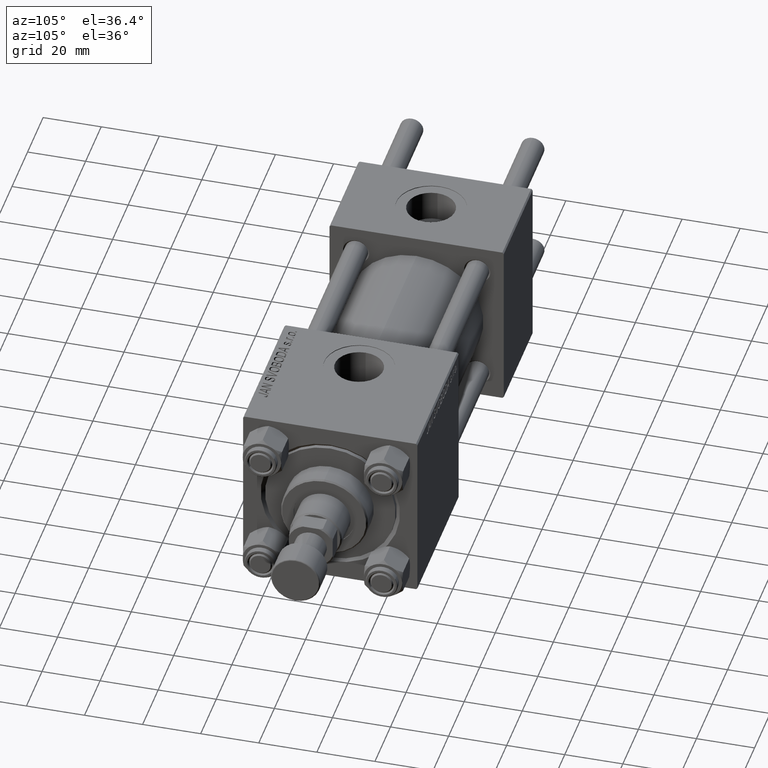
[diagram: clean part render]
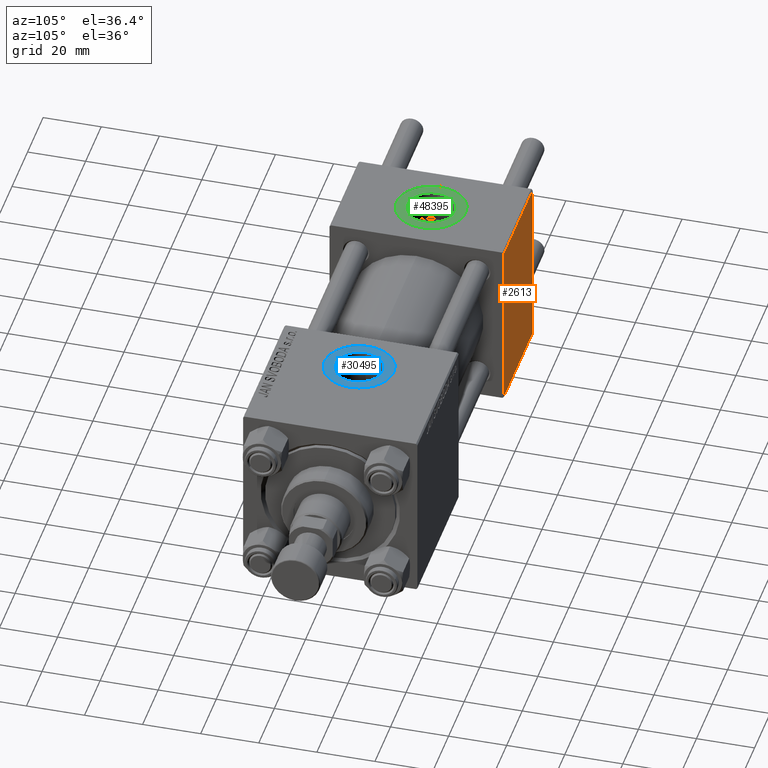
[diagram: same view with three faces highlighted in distinct colors, each labeled with its STEP entity id]
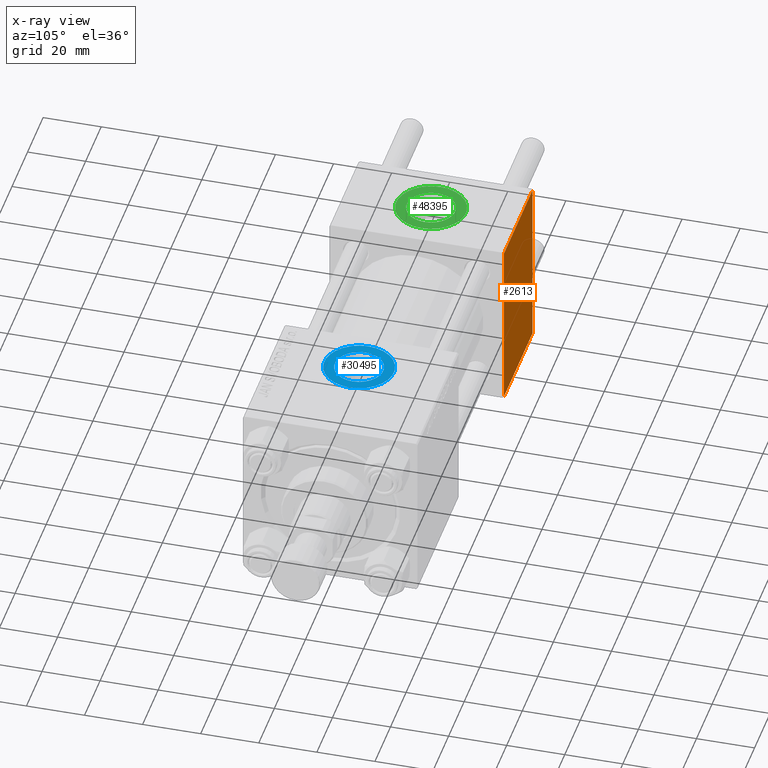
[diagram: x-ray of the same camera — body ghosted, the three highlighted faces saturated]
A machine part, auxiliary view with three faces highlighted in distinct colors.
The next image is the same camera in x-ray (body ghosted, the three faces saturated) — at least one of them is partly hidden behind the body in this view.
Their STEP definitions:

[orange] entity #2613 — the highlighted planar face has unit normal (0, 1, 0).
#2613 = ADVANCED_FACE ( 'NONE', ( #20849 ), #5098, .T. ) ;
#2879 = CARTESIAN_POINT ( 'NONE',  ( 37.00000000000000000, 29.99999999999999289, -29.50000000000000000 ) ) ;
#3991 = EDGE_CURVE ( 'NONE', #32459, #26860, #38573, .T. ) ;
#4728 = EDGE_CURVE ( 'NONE', #50171, #26860, #44329, .T. ) ;
#5098 = PLANE ( 'NONE',  #32995 ) ;
#5157 = CARTESIAN_POINT ( 'NONE',  ( 37.00000000000000000, 29.99999999999999289, -29.50000000000000000 ) ) ;
#7176 = DIRECTION ( 'NONE',  ( -1.000000000000000000, 0.000000000000000000, 0.000000000000000000 ) ) ;
#7856 = VECTOR ( 'NONE', #7176, 1000.000000000000000 ) ;
#9405 = DIRECTION ( 'NONE',  ( 0.000000000000000000, -0.000000000000000000, 1.000000000000000000 ) ) ;
#11126 = CARTESIAN_POINT ( 'NONE',  ( 0.000000000000000000, 29.99999999999999289, 30.00000000000000000 ) ) ;
#12667 = LINE ( 'NONE', #28182, #43331 ) ;
#14344 = CARTESIAN_POINT ( 'NONE',  ( 0.000000000000000000, 29.99999999999999289, -29.50000000000000000 ) ) ;
#17536 = ORIENTED_EDGE ( 'NONE', *, *, #3991, .F. ) ;
#20849 = FACE_OUTER_BOUND ( 'NONE', #33853, .T. ) ;
#21216 = ORIENTED_EDGE ( 'NONE', *, *, #34531, .T. ) ;
#24892 = ORIENTED_EDGE ( 'NONE', *, *, #28932, .T. ) ;
#25684 = VECTOR ( 'NONE', #37945, 1000.000000000000000 ) ;
#26388 = DIRECTION ( 'NONE',  ( 0.000000000000000000, 0.000000000000000000, -1.000000000000000000 ) ) ;
#26860 = VERTEX_POINT ( 'NONE', #14344 ) ;
#28182 = CARTESIAN_POINT ( 'NONE',  ( 37.00000000000000000, 29.99999999999999289, 30.00000000000000000 ) ) ;
#28932 = EDGE_CURVE ( 'NONE', #31294, #50171, #12667, .T. ) ;
#28952 = CARTESIAN_POINT ( 'NONE',  ( 37.00000000000000000, 29.99999999999999289, 29.50000000000000000 ) ) ;
#31294 = VERTEX_POINT ( 'NONE', #28952 ) ;
#31537 = CARTESIAN_POINT ( 'NONE',  ( 0.000000000000000000, 29.99999999999999289, 29.50000000000000000 ) ) ;
#32459 = VERTEX_POINT ( 'NONE', #31537 ) ;
#32562 = CARTESIAN_POINT ( 'NONE',  ( 37.00000000000000000, 29.99999999999999289, 30.00000000000000000 ) ) ;
#32995 = AXIS2_PLACEMENT_3D ( 'NONE', #32562, #36108, #9405 ) ;
#33853 = EDGE_LOOP ( 'NONE', ( #24892, #37162, #17536, #21216 ) ) ;
#34142 = LINE ( 'NONE', #42007, #25684 ) ;
#34531 = EDGE_CURVE ( 'NONE', #32459, #31294, #34142, .T. ) ;
#34666 = VECTOR ( 'NONE', #26388, 1000.000000000000000 ) ;
#36108 = DIRECTION ( 'NONE',  ( -0.000000000000000000, 1.000000000000000000, 0.000000000000000000 ) ) ;
#37162 = ORIENTED_EDGE ( 'NONE', *, *, #4728, .T. ) ;
#37945 = DIRECTION ( 'NONE',  ( 1.000000000000000000, 0.000000000000000000, 0.000000000000000000 ) ) ;
#38573 = LINE ( 'NONE', #11126, #34666 ) ;
#42007 = CARTESIAN_POINT ( 'NONE',  ( 37.00000000000000000, 29.99999999999999289, 29.50000000000000000 ) ) ;
#43331 = VECTOR ( 'NONE', #43702, 1000.000000000000000 ) ;
#43702 = DIRECTION ( 'NONE',  ( 0.000000000000000000, 0.000000000000000000, -1.000000000000000000 ) ) ;
#44329 = LINE ( 'NONE', #2879, #7856 ) ;
#50171 = VERTEX_POINT ( 'NONE', #5157 ) ;

[blue] entity #30495 — the highlighted planar face has unit normal (0, 0, 1).
#1060 = CARTESIAN_POINT ( 'NONE',  ( 119.3300000000000125, -2.449316168263869821E-15, 29.79999999999999716 ) ) ;
#1387 = ORIENTED_EDGE ( 'NONE', *, *, #31354, .T. ) ;
#2069 = VERTEX_POINT ( 'NONE', #29021 ) ;
#2604 = DIRECTION ( 'NONE',  ( -0.000000000000000000, -0.000000000000000000, -1.000000000000000000 ) ) ;
#3256 = DIRECTION ( 'NONE',  ( 1.000000000000000000, 0.000000000000000000, 0.000000000000000000 ) ) ;
#4036 = EDGE_CURVE ( 'NONE', #28586, #11021, #7034, .T. ) ;
#5441 = AXIS2_PLACEMENT_3D ( 'NONE', #25236, #2604, #37174 ) ;
#7034 = CIRCLE ( 'NONE', #35458, 11.99999999999999645 ) ;
#7952 = EDGE_LOOP ( 'NONE', ( #1387, #14329 ) ) ;
#9870 = FACE_OUTER_BOUND ( 'NONE', #7952, .T. ) ;
#10873 = CARTESIAN_POINT ( 'NONE',  ( 111.0000000000000000, -3.469446951953613794E-15, 29.79999999999999716 ) ) ;
#11021 = VERTEX_POINT ( 'NONE', #38157 ) ;
#11373 = DIRECTION ( 'NONE',  ( 0.000000000000000000, 0.000000000000000000, 1.000000000000000000 ) ) ;
#12724 = CARTESIAN_POINT ( 'NONE',  ( 99.00000000000000000, -1.999870792976792017E-15, 29.79999999999999716 ) ) ;
#14329 = ORIENTED_EDGE ( 'NONE', *, *, #4036, .T. ) ;
#15134 = ORIENTED_EDGE ( 'NONE', *, *, #41181, .T. ) ;
#15725 = DIRECTION ( 'NONE',  ( 1.000000000000000000, 0.000000000000000000, 0.000000000000000000 ) ) ;
#17402 = CIRCLE ( 'NONE', #45827, 11.99999999999999645 ) ;
#17616 = CIRCLE ( 'NONE', #5441, 8.330000000000003624 ) ;
#21461 = AXIS2_PLACEMENT_3D ( 'NONE', #25135, #48781, #40372 ) ;
#22325 = DIRECTION ( 'NONE',  ( 1.000000000000000000, 0.000000000000000000, 0.000000000000000000 ) ) ;
#23864 = CARTESIAN_POINT ( 'NONE',  ( 111.0000000000000000, -3.469446951953613794E-15, 29.79999999999999716 ) ) ;
#24470 = ORIENTED_EDGE ( 'NONE', *, *, #25629, .T. ) ;
#25135 = CARTESIAN_POINT ( 'NONE',  ( 111.0000000000000000, -3.469446951953613794E-15, 29.79999999999999716 ) ) ;
#25236 = CARTESIAN_POINT ( 'NONE',  ( 111.0000000000000000, -3.469446951953613794E-15, 29.79999999999999716 ) ) ;
#25367 = AXIS2_PLACEMENT_3D ( 'NONE', #23864, #38854, #15725 ) ;
#25629 = EDGE_CURVE ( 'NONE', #2069, #30078, #31852, .T. ) ;
#26398 = CARTESIAN_POINT ( 'NONE',  ( 111.0000000000000000, -3.469446951953613794E-15, 29.79999999999999716 ) ) ;
#28586 = VERTEX_POINT ( 'NONE', #12724 ) ;
#28941 = FACE_BOUND ( 'NONE', #32531, .T. ) ;
#29021 = CARTESIAN_POINT ( 'NONE',  ( 102.6700000000000017, -3.469446951953613794E-15, 29.79999999999999716 ) ) ;
#30078 = VERTEX_POINT ( 'NONE', #1060 ) ;
#30495 = ADVANCED_FACE ( 'NONE', ( #28941, #9870 ), #44966, .T. ) ;
#31354 = EDGE_CURVE ( 'NONE', #11021, #28586, #17402, .T. ) ;
#31852 = CIRCLE ( 'NONE', #25367, 8.330000000000003624 ) ;
#32531 = EDGE_LOOP ( 'NONE', ( #24470, #15134 ) ) ;
#35458 = AXIS2_PLACEMENT_3D ( 'NONE', #10873, #11373, #3256 ) ;
#37174 = DIRECTION ( 'NONE',  ( 1.000000000000000000, 0.000000000000000000, 0.000000000000000000 ) ) ;
#38157 = CARTESIAN_POINT ( 'NONE',  ( 123.0000000000000000, -3.469446951953613794E-15, 29.79999999999999716 ) ) ;
#38854 = DIRECTION ( 'NONE',  ( -0.000000000000000000, -0.000000000000000000, -1.000000000000000000 ) ) ;
#40372 = DIRECTION ( 'NONE',  ( 1.000000000000000000, 0.000000000000000000, -0.000000000000000000 ) ) ;
#41181 = EDGE_CURVE ( 'NONE', #30078, #2069, #17616, .T. ) ;
#42165 = DIRECTION ( 'NONE',  ( 0.000000000000000000, 0.000000000000000000, 1.000000000000000000 ) ) ;
#44966 = PLANE ( 'NONE',  #21461 ) ;
#45827 = AXIS2_PLACEMENT_3D ( 'NONE', #26398, #42165, #22325 ) ;
#48781 = DIRECTION ( 'NONE',  ( 0.000000000000000000, 0.000000000000000000, 1.000000000000000000 ) ) ;

[green] entity #48395 — the highlighted planar face has unit normal (0, 0, 1).
#1698 = ORIENTED_EDGE ( 'NONE', *, *, #21244, .T. ) ;
#2458 = DIRECTION ( 'NONE',  ( 1.000000000000000000, 0.000000000000000000, 0.000000000000000000 ) ) ;
#4581 = DIRECTION ( 'NONE',  ( 1.000000000000000000, 0.000000000000000000, 0.000000000000000000 ) ) ;
#5369 = AXIS2_PLACEMENT_3D ( 'NONE', #24749, #18322, #14497 ) ;
#6011 = DIRECTION ( 'NONE',  ( 1.000000000000000000, 0.000000000000000000, 0.000000000000000000 ) ) ;
#6521 = DIRECTION ( 'NONE',  ( 0.000000000000000000, 0.000000000000000000, 1.000000000000000000 ) ) ;
#7483 = CIRCLE ( 'NONE', #22927, 12.00000000000000000 ) ;
#7492 = VERTEX_POINT ( 'NONE', #37315 ) ;
#7877 = CARTESIAN_POINT ( 'NONE',  ( 26.82999999999999829, -3.469446951953614978E-15, 29.79999999999999716 ) ) ;
#8970 = CIRCLE ( 'NONE', #41483, 8.330000000000000071 ) ;
#10723 = FACE_BOUND ( 'NONE', #36084, .T. ) ;
#11694 = DIRECTION ( 'NONE',  ( 0.000000000000000000, 0.000000000000000000, 1.000000000000000000 ) ) ;
#12224 = VERTEX_POINT ( 'NONE', #7877 ) ;
#14346 = CIRCLE ( 'NONE', #5369, 8.330000000000000071 ) ;
#14497 = DIRECTION ( 'NONE',  ( 1.000000000000000000, 0.000000000000000000, 0.000000000000000000 ) ) ;
#17014 = EDGE_CURVE ( 'NONE', #12224, #17884, #8970, .T. ) ;
#17884 = VERTEX_POINT ( 'NONE', #34112 ) ;
#18322 = DIRECTION ( 'NONE',  ( 0.000000000000000000, 0.000000000000000000, 1.000000000000000000 ) ) ;
#18856 = DIRECTION ( 'NONE',  ( 0.000000000000000000, 0.000000000000000000, 1.000000000000000000 ) ) ;
#20805 = ORIENTED_EDGE ( 'NONE', *, *, #35713, .F. ) ;
#21244 = EDGE_CURVE ( 'NONE', #24295, #7492, #7483, .T. ) ;
#21775 = CARTESIAN_POINT ( 'NONE',  ( 18.50000000000000000, -3.469446951953614978E-15, 29.79999999999999716 ) ) ;
#22412 = FACE_OUTER_BOUND ( 'NONE', #35905, .T. ) ;
#22661 = CIRCLE ( 'NONE', #47840, 12.00000000000000000 ) ;
#22927 = AXIS2_PLACEMENT_3D ( 'NONE', #37276, #40322, #2458 ) ;
#24295 = VERTEX_POINT ( 'NONE', #26920 ) ;
#24749 = CARTESIAN_POINT ( 'NONE',  ( 18.50000000000000000, -3.469446951953614978E-15, 29.79999999999999716 ) ) ;
#26920 = CARTESIAN_POINT ( 'NONE',  ( 6.499999999999997335, -1.999870792976790833E-15, 29.79999999999999716 ) ) ;
#34112 = CARTESIAN_POINT ( 'NONE',  ( 10.16999999999999638, -2.449316168263869821E-15, 29.79999999999999716 ) ) ;
#34123 = PLANE ( 'NONE',  #49516 ) ;
#35713 = EDGE_CURVE ( 'NONE', #17884, #12224, #14346, .T. ) ;
#35905 = EDGE_LOOP ( 'NONE', ( #43136, #1698 ) ) ;
#36084 = EDGE_LOOP ( 'NONE', ( #41490, #20805 ) ) ;
#37276 = CARTESIAN_POINT ( 'NONE',  ( 18.50000000000000000, -3.469446951953614978E-15, 29.79999999999999716 ) ) ;
#37315 = CARTESIAN_POINT ( 'NONE',  ( 30.50000000000000000, -3.469446951953614978E-15, 29.79999999999999716 ) ) ;
#40322 = DIRECTION ( 'NONE',  ( 0.000000000000000000, 0.000000000000000000, 1.000000000000000000 ) ) ;
#41483 = AXIS2_PLACEMENT_3D ( 'NONE', #43231, #11694, #4581 ) ;
#41490 = ORIENTED_EDGE ( 'NONE', *, *, #17014, .F. ) ;
#42245 = DIRECTION ( 'NONE',  ( 1.000000000000000000, 0.000000000000000000, -0.000000000000000000 ) ) ;
#43136 = ORIENTED_EDGE ( 'NONE', *, *, #46937, .T. ) ;
#43231 = CARTESIAN_POINT ( 'NONE',  ( 18.50000000000000000, -3.469446951953614978E-15, 29.79999999999999716 ) ) ;
#46937 = EDGE_CURVE ( 'NONE', #7492, #24295, #22661, .T. ) ;
#47840 = AXIS2_PLACEMENT_3D ( 'NONE', #21775, #6521, #6011 ) ;
#48395 = ADVANCED_FACE ( 'NONE', ( #10723, #22412 ), #34123, .T. ) ;
#49516 = AXIS2_PLACEMENT_3D ( 'NONE', #49625, #18856, #42245 ) ;
#49625 = CARTESIAN_POINT ( 'NONE',  ( 18.50000000000000000, -3.469446951953614978E-15, 29.79999999999999716 ) ) ;